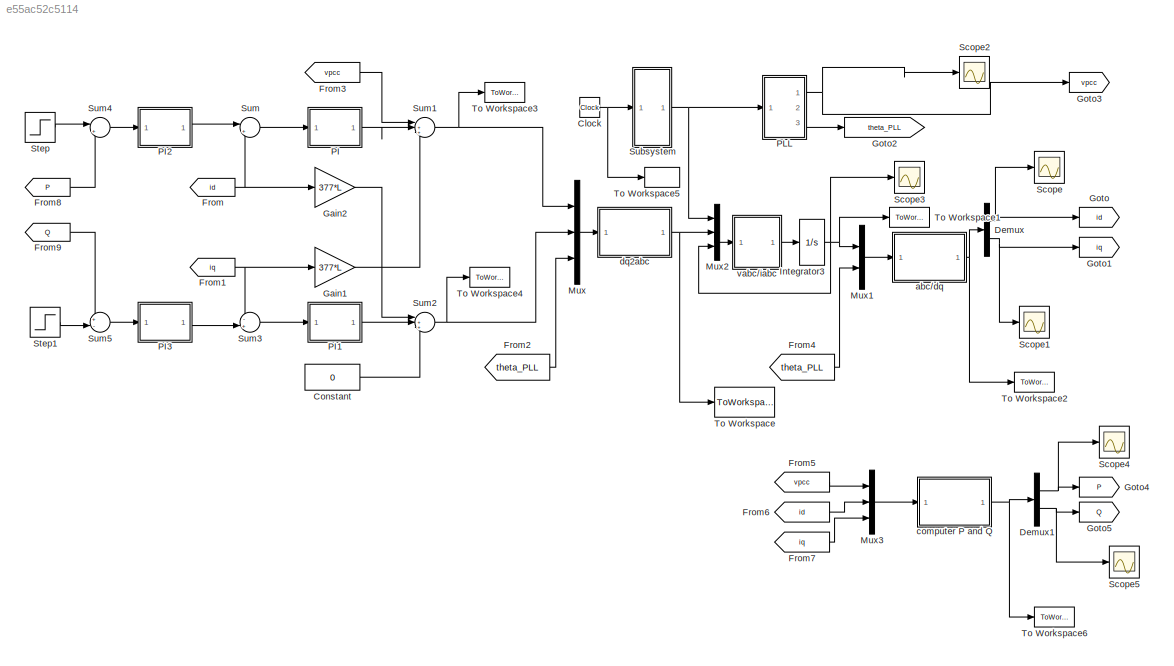
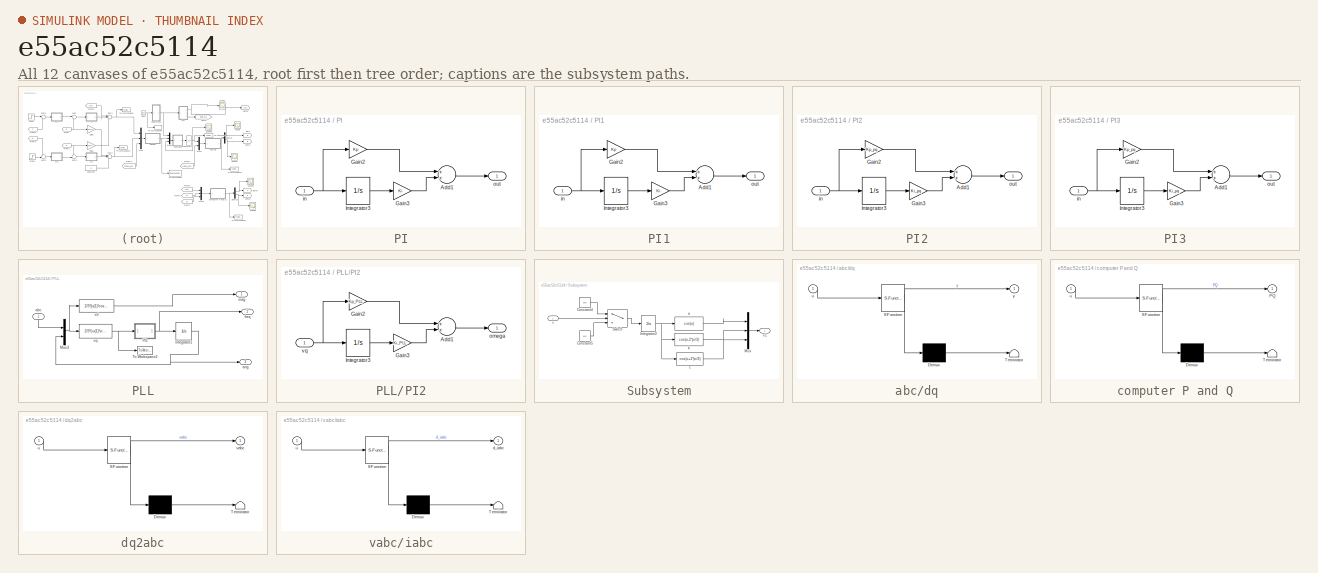
[diagram: thumbnail index - all 12 canvases of the model, root first then tree order]
MODEL slx_e55ac52c5114
KIND model
BLOCK [Clock] Clock
BLOCK [Constant] Constant
  Value = 0
BLOCK [Demux] Demux
  DisplayOption = bar
  Outputs = 2
  Ports = [1, 2]
BLOCK [Demux] Demux1
  DisplayOption = bar
  Outputs = 2
  Ports = [1, 2]
BLOCK [From] From
  GotoTag = id
BLOCK [From] From1
  GotoTag = iq
BLOCK [From] From2
  GotoTag = theta_PLL
BLOCK [From] From3
  GotoTag = vpcc
BLOCK [From] From4
  GotoTag = theta_PLL
BLOCK [From] From5
  GotoTag = vpcc
BLOCK [From] From6
  GotoTag = id
BLOCK [From] From7
  GotoTag = iq
BLOCK [From] From8
  GotoTag = P
BLOCK [From] From9
  GotoTag = Q
BLOCK [Gain] Gain1
  Gain = 377*L
  OutDataTypeStr = Inherit: Inherit via internal rule
  ParamDataTypeStr = Inherit: Inherit via internal rule
  SaturateOnIntegerOverflow = off
BLOCK [Gain] Gain2
  Gain = 377*L
  OutDataTypeStr = Inherit: Inherit via internal rule
  ParamDataTypeStr = Inherit: Inherit via internal rule
  SaturateOnIntegerOverflow = off
BLOCK [Goto] Goto
  GotoTag = id
BLOCK [Goto] Goto1
  GotoTag = iq
BLOCK [Goto] Goto2
  GotoTag = theta_PLL
BLOCK [Goto] Goto3
  GotoTag = vpcc
BLOCK [Goto] Goto4
  GotoTag = P
BLOCK [Goto] Goto5
  GotoTag = Q
BLOCK [Integrator] Integrator3
  InitialCondition = zeros(3,1)
  Ports = [1, 1]
BLOCK [Mux] Mux
  DisplayOption = bar
  Inputs = 3
  Ports = [3, 1]
BLOCK [Mux] Mux1
  DisplayOption = bar
  Inputs = 2
  Ports = [2, 1]
BLOCK [Mux] Mux2
  DisplayOption = bar
  Inputs = 3
  Ports = [3, 1]
BLOCK [Mux] Mux3
  DisplayOption = bar
  Inputs = 3
  Ports = [3, 1]
BLOCK [SubSystem] PI
  FunctionWithSeparateData = off
  MaskHideContents = off
  MinAlgLoopOccurrences = off
  Opaque = off
  Ports = [1, 1]
  PropExecContextOutsideSubsystem = off
  RTWSystemCode = Auto
  RequestExecContextInheritance = off
BLOCK [Sum] PI/Add1
  InputSameDT = off
  OutDataTypeStr = Inherit: Inherit via internal rule
  Ports = [2, 1]
  SaturateOnIntegerOverflow = off
BLOCK [Gain] PI/Gain2
  Gain = Kp
  OutDataTypeStr = Inherit: Inherit via internal rule
  ParamDataTypeStr = Inherit: Inherit via internal rule
  SaturateOnIntegerOverflow = off
BLOCK [Gain] PI/Gain3
  Gain = Ki
  OutDataTypeStr = Inherit: Inherit via internal rule
  ParamDataTypeStr = Inherit: Inherit via internal rule
  SaturateOnIntegerOverflow = off
BLOCK [Integrator] PI/Integrator3
  Ports = [1, 1]
BLOCK [Inport] PI/in
  IconDisplay = Port number
BLOCK [Outport] PI/out
  IconDisplay = Port number
BLOCK [SubSystem] PI1
  FunctionWithSeparateData = off
  MaskHideContents = off
  MinAlgLoopOccurrences = off
  Opaque = off
  Ports = [1, 1]
  PropExecContextOutsideSubsystem = off
  RTWSystemCode = Auto
  RequestExecContextInheritance = off
BLOCK [Sum] PI1/Add1
  InputSameDT = off
  OutDataTypeStr = Inherit: Inherit via internal rule
  Ports = [2, 1]
  SaturateOnIntegerOverflow = off
BLOCK [Gain] PI1/Gain2
  Gain = Kp
  OutDataTypeStr = Inherit: Inherit via internal rule
  ParamDataTypeStr = Inherit: Inherit via internal rule
  SaturateOnIntegerOverflow = off
BLOCK [Gain] PI1/Gain3
  Gain = Ki
  OutDataTypeStr = Inherit: Inherit via internal rule
  ParamDataTypeStr = Inherit: Inherit via internal rule
  SaturateOnIntegerOverflow = off
BLOCK [Integrator] PI1/Integrator3
  Ports = [1, 1]
BLOCK [Inport] PI1/in
  IconDisplay = Port number
BLOCK [Outport] PI1/out
  IconDisplay = Port number
BLOCK [SubSystem] PI2
  FunctionWithSeparateData = off
  MaskHideContents = off
  MinAlgLoopOccurrences = off
  Opaque = off
  Ports = [1, 1]
  PropExecContextOutsideSubsystem = off
  RTWSystemCode = Auto
  RequestExecContextInheritance = off
BLOCK [Sum] PI2/Add1
  InputSameDT = off
  OutDataTypeStr = Inherit: Inherit via internal rule
  Ports = [2, 1]
  SaturateOnIntegerOverflow = off
BLOCK [Gain] PI2/Gain2
  Gain = Kp_pq
  OutDataTypeStr = Inherit: Inherit via internal rule
  ParamDataTypeStr = Inherit: Inherit via internal rule
  SaturateOnIntegerOverflow = off
BLOCK [Gain] PI2/Gain3
  Gain = Ki_pq
  OutDataTypeStr = Inherit: Inherit via internal rule
  ParamDataTypeStr = Inherit: Inherit via internal rule
  SaturateOnIntegerOverflow = off
BLOCK [Integrator] PI2/Integrator3
  Ports = [1, 1]
BLOCK [Inport] PI2/in
  IconDisplay = Port number
BLOCK [Outport] PI2/out
  IconDisplay = Port number
BLOCK [SubSystem] PI3
  FunctionWithSeparateData = off
  MaskHideContents = off
  MinAlgLoopOccurrences = off
  Opaque = off
  Ports = [1, 1]
  PropExecContextOutsideSubsystem = off
  RTWSystemCode = Auto
  RequestExecContextInheritance = off
BLOCK [Sum] PI3/Add1
  InputSameDT = off
  OutDataTypeStr = Inherit: Inherit via internal rule
  Ports = [2, 1]
  SaturateOnIntegerOverflow = off
BLOCK [Gain] PI3/Gain2
  Gain = Kp_pq
  OutDataTypeStr = Inherit: Inherit via internal rule
  ParamDataTypeStr = Inherit: Inherit via internal rule
  SaturateOnIntegerOverflow = off
BLOCK [Gain] PI3/Gain3
  Gain = Ki_pq
  OutDataTypeStr = Inherit: Inherit via internal rule
  ParamDataTypeStr = Inherit: Inherit via internal rule
  SaturateOnIntegerOverflow = off
BLOCK [Integrator] PI3/Integrator3
  Ports = [1, 1]
BLOCK [Inport] PI3/in
  IconDisplay = Port number
BLOCK [Outport] PI3/out
  IconDisplay = Port number
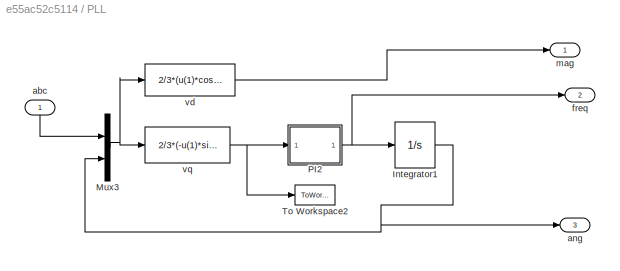
BLOCK [SubSystem] PLL
  FunctionWithSeparateData = off
  MaskHideContents = off
  MinAlgLoopOccurrences = off
  Opaque = off
  Ports = [1, 3]
  PropExecContextOutsideSubsystem = off
  RTWSystemCode = Auto
  RequestExecContextInheritance = off
BLOCK [Integrator] PLL/Integrator1
  Ports = [1, 1]
BLOCK [Mux] PLL/Mux3
  DisplayOption = bar
  Inputs = 2
  Ports = [2, 1]
BLOCK [SubSystem] PLL/PI2
  FunctionWithSeparateData = off
  MaskHideContents = off
  MinAlgLoopOccurrences = off
  Opaque = off
  Ports = [1, 1]
  PropExecContextOutsideSubsystem = off
  RTWSystemCode = Auto
  RequestExecContextInheritance = off
BLOCK [Sum] PLL/PI2/Add1
  InputSameDT = off
  OutDataTypeStr = Inherit: Inherit via internal rule
  Ports = [2, 1]
  SaturateOnIntegerOverflow = off
BLOCK [Gain] PLL/PI2/Gain2
  Gain = Kp_PLL
  OutDataTypeStr = Inherit: Inherit via internal rule
  ParamDataTypeStr = Inherit: Inherit via internal rule
  SaturateOnIntegerOverflow = off
BLOCK [Gain] PLL/PI2/Gain3
  Gain = Ki_PLL
  OutDataTypeStr = Inherit: Inherit via internal rule
  ParamDataTypeStr = Inherit: Inherit via internal rule
  SaturateOnIntegerOverflow = off
BLOCK [Integrator] PLL/PI2/Integrator3
  Ports = [1, 1]
BLOCK [Outport] PLL/PI2/omega
  IconDisplay = Port number
BLOCK [Inport] PLL/PI2/vq
  IconDisplay = Port number
BLOCK [ToWorkspace] PLL/To Workspace2
  MaxDataPoints = inf
  Ports = [1]
  SampleTime = -1
  VariableName = vq
BLOCK [Inport] PLL/abc
  IconDisplay = Port number
BLOCK [Outport] PLL/ang
  IconDisplay = Port number
  Port = 3
BLOCK [Outport] PLL/freq
  IconDisplay = Port number
  Port = 2
BLOCK [Outport] PLL/mag
  IconDisplay = Port number
BLOCK [Fcn] PLL/vd
  Expr = 2/3*(u(1)*cos(u(4)) + u(2)*cos(u(4)-2*pi/3) + u(3)*cos(u(4)+2*pi/3))
BLOCK [Fcn] PLL/vq
  Expr = 2/3*(-u(1)*sin(u(4)) - u(2)*sin(u(4)-2*pi/3) -u(3)*sin(u(4)+2*pi/3))
BLOCK [Scope] Scope
  DataFormat = StructureWithTime
  Floating = off
  NumInputPorts = 1
  Ports = [1]
  SampleTime = 0
  ShowLegends = off
BLOCK [Scope] Scope1
  DataFormat = StructureWithTime
  Floating = off
  NumInputPorts = 1
  Ports = [1]
  SampleTime = 0
  SaveName = ScopeData1
  ShowLegends = off
  ZoomMode = xonly
BLOCK [Scope] Scope2
  DataFormat = StructureWithTime
  Floating = off
  NumInputPorts = 1
  Ports = [1]
  SampleTime = 0
  SaveName = ScopeData2
  ShowLegends = off
BLOCK [Scope] Scope3
  DataFormat = StructureWithTime
  Floating = off
  NumInputPorts = 1
  Ports = [1]
  SampleTime = 0
  SaveName = ScopeData3
  ShowLegends = off
BLOCK [Scope] Scope4
  DataFormat = StructureWithTime
  Floating = off
  NumInputPorts = 1
  Ports = [1]
  SampleTime = 0
  SaveName = ScopeData4
  ShowLegends = off
  YMax = 7
  YMin = -6
BLOCK [Scope] Scope5
  DataFormat = StructureWithTime
  Floating = off
  NumInputPorts = 1
  Ports = [1]
  SampleTime = 0
  SaveName = ScopeData5
  ShowLegends = off
BLOCK [Step] Step
  After = 0.1
  SampleTime = 0
  Time = 0.25
BLOCK [Step] Step1
  After = 0.1
  SampleTime = 0
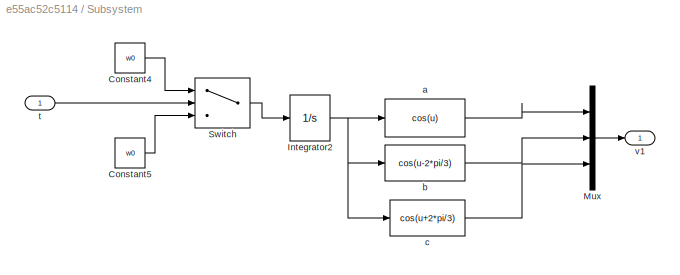
BLOCK [SubSystem] Subsystem
  FunctionWithSeparateData = off
  MaskHideContents = off
  MinAlgLoopOccurrences = off
  Opaque = off
  Ports = [1, 1]
  PropExecContextOutsideSubsystem = off
  RTWSystemCode = Auto
  RequestExecContextInheritance = off
BLOCK [Constant] Subsystem/Constant4
  Value = w0
BLOCK [Constant] Subsystem/Constant5
  Value = w0
BLOCK [Integrator] Subsystem/Integrator2
  Ports = [1, 1]
BLOCK [Mux] Subsystem/Mux
  DisplayOption = bar
  Inputs = 3
  Ports = [3, 1]
BLOCK [Switch] Subsystem/Switch
  InputSameDT = off
  SaturateOnIntegerOverflow = off
  Threshold = 0.1
BLOCK [Fcn] Subsystem/a
  Expr = cos(u)
BLOCK [Fcn] Subsystem/b
  Expr = cos(u-2*pi/3)
BLOCK [Fcn] Subsystem/c
  Expr = cos(u+2*pi/3)
BLOCK [Inport] Subsystem/t
  IconDisplay = Port number
BLOCK [Outport] Subsystem/v1
  IconDisplay = Port number
BLOCK [Sum] Sum
  IconShape = round
  InputSameDT = off
  Inputs = |+-
  OutDataTypeStr = Inherit: Inherit via internal rule
  Ports = [2, 1]
  SaturateOnIntegerOverflow = off
BLOCK [Sum] Sum1
  IconShape = round
  InputSameDT = off
  Inputs = |++-
  OutDataTypeStr = Inherit: Inherit via internal rule
  Ports = [3, 1]
  SaturateOnIntegerOverflow = off
BLOCK [Sum] Sum2
  IconShape = round
  InputSameDT = off
  Inputs = |+++
  OutDataTypeStr = Inherit: Inherit via internal rule
  Ports = [3, 1]
  SaturateOnIntegerOverflow = off
BLOCK [Sum] Sum3
  IconShape = round
  InputSameDT = off
  Inputs = -+|
  OutDataTypeStr = Inherit: Inherit via internal rule
  Ports = [2, 1]
  SaturateOnIntegerOverflow = off
BLOCK [Sum] Sum4
  IconShape = round
  InputSameDT = off
  Inputs = |+-
  OutDataTypeStr = Inherit: Inherit via internal rule
  Ports = [2, 1]
  SaturateOnIntegerOverflow = off
BLOCK [Sum] Sum5
  IconShape = round
  InputSameDT = off
  Inputs = +-|
  OutDataTypeStr = Inherit: Inherit via internal rule
  Ports = [2, 1]
  SaturateOnIntegerOverflow = off
BLOCK [ToWorkspace] To Workspace
  MaxDataPoints = inf
  Ports = [1]
  SampleTime = -1
  VariableName = vabc
BLOCK [ToWorkspace] To Workspace1
  MaxDataPoints = inf
  Ports = [1]
  SampleTime = -1
  VariableName = iabc
BLOCK [ToWorkspace] To Workspace2
  MaxDataPoints = inf
  Ports = [1]
  SampleTime = -1
  VariableName = idq
BLOCK [ToWorkspace] To Workspace3
  MaxDataPoints = inf
  Ports = [1]
  SampleTime = -1
  VariableName = vdc
BLOCK [ToWorkspace] To Workspace4
  MaxDataPoints = inf
  Ports = [1]
  SampleTime = -1
  VariableName = vqc
BLOCK [ToWorkspace] To Workspace5
  MaxDataPoints = inf
  Ports = [1]
  SampleTime = -1
  VariableName = tsim
BLOCK [ToWorkspace] To Workspace6
  MaxDataPoints = inf
  Ports = [1]
  SampleTime = -1
  VariableName = PQ
BLOCK [SubSystem] abc//dq
  ErrorFcn = Stateflow.Translate.translate
  FunctionWithSeparateData = off
  MaskHideContents = off
  MinAlgLoopOccurrences = off
  Opaque = off
  PermitHierarchicalResolution = ExplicitOnly
  Ports = [1, 1]
  PropExecContextOutsideSubsystem = off
  RTWSystemCode = Auto
  RequestExecContextInheritance = off
  SFBlockType = MATLAB Function
  TreatAsAtomicUnit = on
BLOCK [Demux] abc//dq/ Demux 
  Outputs = 1
  Ports = [1, 1]
BLOCK [S-Function] abc//dq/ SFunction 
  EnableBusSupport = on
  FunctionName = sf_sfun
  PortCounts = [1 2]
  Ports = [1, 2]
  Tag = Stateflow S-Function PQ_VSC_complete_v1 3
BLOCK [Terminator] abc//dq/ Terminator 
BLOCK [Inport] abc//dq/u
  IconDisplay = Port number
BLOCK [Outport] abc//dq/y
  IconDisplay = Port number
BLOCK [SubSystem] computer P and Q
  ErrorFcn = Stateflow.Translate.translate
  FunctionWithSeparateData = off
  MaskHideContents = off
  MinAlgLoopOccurrences = off
  Opaque = off
  PermitHierarchicalResolution = ExplicitOnly
  Ports = [1, 1]
  PropExecContextOutsideSubsystem = off
  RTWSystemCode = Auto
  RequestExecContextInheritance = off
  SFBlockType = MATLAB Function
  TreatAsAtomicUnit = on
BLOCK [Demux] computer P and Q/ Demux 
  Outputs = 1
  Ports = [1, 1]
BLOCK [S-Function] computer P and Q/ SFunction 
  EnableBusSupport = on
  FunctionName = sf_sfun
  PortCounts = [1 2]
  Ports = [1, 2]
  Tag = Stateflow S-Function PQ_VSC_complete_v1 4
BLOCK [Terminator] computer P and Q/ Terminator 
BLOCK [Outport] computer P and Q/PQ
  IconDisplay = Port number
BLOCK [Inport] computer P and Q/u
  IconDisplay = Port number
BLOCK [SubSystem] dq2abc
  ErrorFcn = Stateflow.Translate.translate
  FunctionWithSeparateData = off
  MaskHideContents = off
  MinAlgLoopOccurrences = off
  Opaque = off
  PermitHierarchicalResolution = ExplicitOnly
  Ports = [1, 1]
  PropExecContextOutsideSubsystem = off
  RTWSystemCode = Auto
  RequestExecContextInheritance = off
  SFBlockType = MATLAB Function
  TreatAsAtomicUnit = on
BLOCK [Demux] dq2abc/ Demux 
  Outputs = 1
  Ports = [1, 1]
BLOCK [S-Function] dq2abc/ SFunction 
  EnableBusSupport = on
  FunctionName = sf_sfun
  PortCounts = [1 2]
  Ports = [1, 2]
  Tag = Stateflow S-Function PQ_VSC_complete_v1 2
BLOCK [Terminator] dq2abc/ Terminator 
BLOCK [Inport] dq2abc/u
  IconDisplay = Port number
BLOCK [Outport] dq2abc/vabc
  IconDisplay = Port number
BLOCK [SubSystem] vabc//iabc
  ErrorFcn = Stateflow.Translate.translate
  FunctionWithSeparateData = off
  MaskHideContents = off
  MinAlgLoopOccurrences = off
  Opaque = off
  PermitHierarchicalResolution = ExplicitOnly
  Ports = [1, 1]
  PropExecContextOutsideSubsystem = off
  RTWSystemCode = Auto
  RequestExecContextInheritance = off
  SFBlockType = MATLAB Function
  TreatAsAtomicUnit = on
BLOCK [Demux] vabc//iabc/ Demux 
  Outputs = 1
  Ports = [1, 1]
BLOCK [S-Function] vabc//iabc/ SFunction 
  EnableBusSupport = on
  FunctionName = sf_sfun
  Parameters = L,R
  PortCounts = [1 2]
  Ports = [1, 2]
  Tag = Stateflow S-Function PQ_VSC_complete_v1 1
BLOCK [Terminator] vabc//iabc/ Terminator 
BLOCK [Outport] vabc//iabc/d_iabc
  IconDisplay = Port number
BLOCK [Inport] vabc//iabc/u
  IconDisplay = Port number
NET Clock:1 -> Subsystem:1, To Workspace5:1
LINE Constant:1 -> Sum2:3
NET Demux1:1 -> Goto4:1, Scope4:1
NET Demux1:2 -> Goto5:1, Scope5:1
NET Demux:1 -> Goto:1, Scope:1
NET Demux:2 -> Goto1:1, Scope1:1
NET From1:1 -> Gain1:1, Sum3:1
LINE From2:1 -> Mux:3
LINE From3:1 -> Sum1:1
LINE From4:1 -> Mux1:2
LINE From5:1 -> Mux3:1
LINE From6:1 -> Mux3:2
LINE From7:1 -> Mux3:3
LINE From8:1 -> Sum4:2
LINE From9:1 -> Sum5:1
NET From:1 -> Gain2:1, Sum:2
LINE Gain1:1 -> Sum1:3
LINE Gain2:1 -> Sum2:1
NET Integrator3:1 -> Mux1:1, Mux2:3, Scope3:1, To Workspace1:1
LINE Mux1:1 -> abc//dq:1
LINE Mux2:1 -> vabc//iabc:1
LINE Mux3:1 -> computer P and Q:1
LINE Mux:1 -> dq2abc:1
LINE PI/Add1:1 -> PI/out:1
LINE PI/Gain2:1 -> PI/Add1:1
LINE PI/Gain3:1 -> PI/Add1:2
LINE PI/Integrator3:1 -> PI/Gain3:1
NET PI/in:1 -> PI/Gain2:1, PI/Integrator3:1
LINE PI1/Add1:1 -> PI1/out:1
LINE PI1/Gain2:1 -> PI1/Add1:1
LINE PI1/Gain3:1 -> PI1/Add1:2
LINE PI1/Integrator3:1 -> PI1/Gain3:1
NET PI1/in:1 -> PI1/Gain2:1, PI1/Integrator3:1
LINE PI1:1 -> Sum2:2
LINE PI2/Add1:1 -> PI2/out:1
LINE PI2/Gain2:1 -> PI2/Add1:1
LINE PI2/Gain3:1 -> PI2/Add1:2
LINE PI2/Integrator3:1 -> PI2/Gain3:1
NET PI2/in:1 -> PI2/Gain2:1, PI2/Integrator3:1
LINE PI2:1 -> Sum:1
LINE PI3/Add1:1 -> PI3/out:1
LINE PI3/Gain2:1 -> PI3/Add1:1
LINE PI3/Gain3:1 -> PI3/Add1:2
LINE PI3/Integrator3:1 -> PI3/Gain3:1
NET PI3/in:1 -> PI3/Gain2:1, PI3/Integrator3:1
LINE PI3:1 -> Sum3:2
LINE PI:1 -> Sum1:2
NET PLL/Integrator1:1 -> PLL/Mux3:2, PLL/ang:1
NET PLL/Mux3:1 -> PLL/vd:1, PLL/vq:1
LINE PLL/PI2/Add1:1 -> PLL/PI2/omega:1
LINE PLL/PI2/Gain2:1 -> PLL/PI2/Add1:1
LINE PLL/PI2/Gain3:1 -> PLL/PI2/Add1:2
LINE PLL/PI2/Integrator3:1 -> PLL/PI2/Gain3:1
NET PLL/PI2/vq:1 -> PLL/PI2/Gain2:1, PLL/PI2/Integrator3:1
NET PLL/PI2:1 -> PLL/Integrator1:1, PLL/freq:1
LINE PLL/abc:1 -> PLL/Mux3:1
LINE PLL/vd:1 -> PLL/mag:1
NET PLL/vq:1 -> PLL/PI2:1, PLL/To Workspace2:1
NET PLL:1 -> Goto3:1, Scope2:1
LINE PLL:3 -> Goto2:1
LINE Step1:1 -> Sum5:2
LINE Step:1 -> Sum4:1
LINE Subsystem/Constant4:1 -> Subsystem/Switch:1
LINE Subsystem/Constant5:1 -> Subsystem/Switch:3
NET Subsystem/Integrator2:1 -> Subsystem/a:1, Subsystem/b:1, Subsystem/c:1
LINE Subsystem/Mux:1 -> Subsystem/v1:1
LINE Subsystem/Switch:1 -> Subsystem/Integrator2:1
LINE Subsystem/a:1 -> Subsystem/Mux:1
LINE Subsystem/b:1 -> Subsystem/Mux:2
LINE Subsystem/c:1 -> Subsystem/Mux:3
LINE Subsystem/t:1 -> Subsystem/Switch:2
NET Subsystem:1 -> Mux2:1, PLL:1
NET Sum1:1 -> Mux:1, To Workspace3:1
NET Sum2:1 -> Mux:2, To Workspace4:1
LINE Sum3:1 -> PI1:1
LINE Sum4:1 -> PI2:1
LINE Sum5:1 -> PI3:1
LINE Sum:1 -> PI:1
NET abc//dq:1 -> Demux:1, To Workspace2:1
NET computer P and Q:1 -> Demux1:1, To Workspace6:1
NET dq2abc:1 -> Mux2:2, To Workspace:1
LINE vabc//iabc:1 -> Integrator3:1
note: NET lines group one-source signal fan-out (src -> all destinations, sorted); 1:1 wires keep LINE
